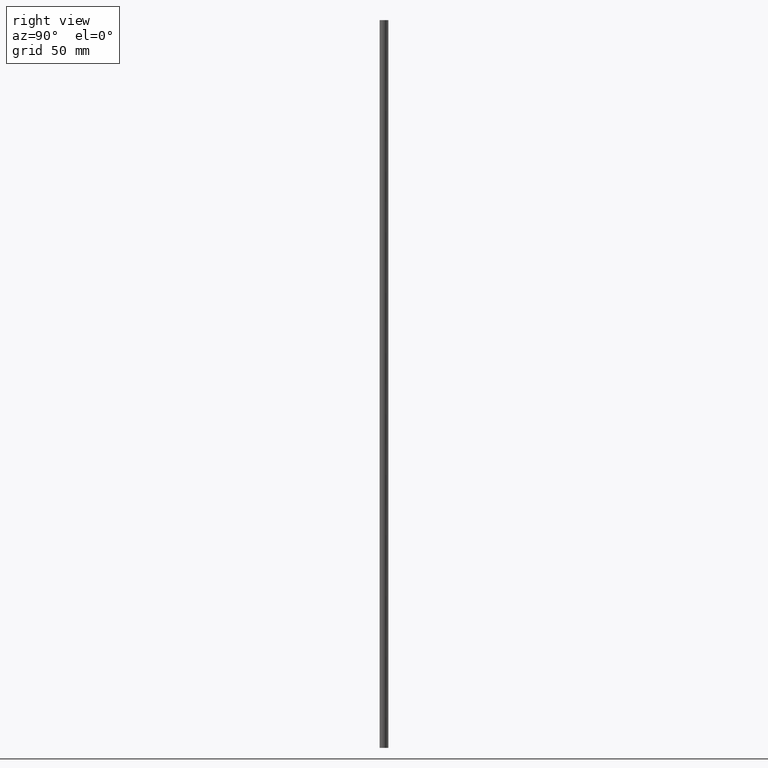
[diagram: clean part render]
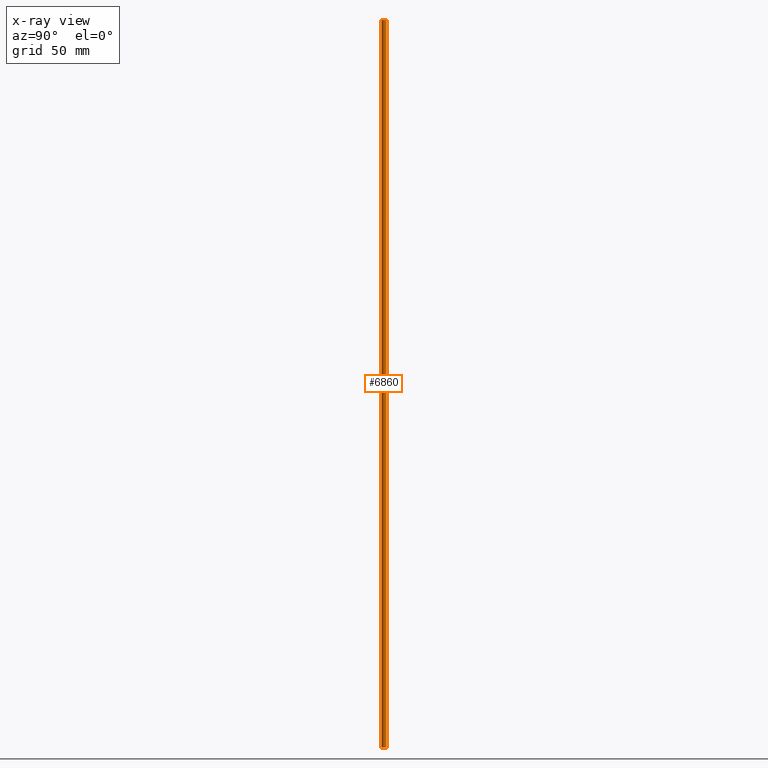
[diagram: x-ray — body ghosted, one internal face saturated and labeled with its STEP entity id]
A machine part, right view, then the same camera in x-ray: the body is ghosted and one INTERNAL B-rep face — a face not visible from any outside direction — is saturated and labeled: STEP entity #6860.
In plain terms, the highlighted face is a freeform B-spline surface patch.
Its self-contained STEP definition (entity closure, byte-faithful):
#6758=CARTESIAN_POINT('',(0.118034234656758,-0.993009526363666,307.500000000000170));
#6759=CARTESIAN_POINT('',(0.089614728637978,-0.996387615448606,307.500000000000110));
#6760=CARTESIAN_POINT('',(0.061048539534857,-0.998134798421867,307.500000000000110));
#6761=CARTESIAN_POINT('',(-0.937086258887010,-1.059183337956724,307.500000000000000));
#6762=CARTESIAN_POINT('',(-0.998134798421867,-0.061048539534857,307.500000000000110));
#6763=CARTESIAN_POINT('',(-1.059183337956724,0.937086258887010,307.500000000000000));
#6764=CARTESIAN_POINT('',(-0.061048539534857,0.998134798421867,307.500000000000110));
#6765=CARTESIAN_POINT('',(0.118034234656758,-0.993009526363666,-7.687500000000002));
#6766=CARTESIAN_POINT('',(0.089614728637978,-0.996387615448606,-7.687500000000001));
#6767=CARTESIAN_POINT('',(0.061048539534857,-0.998134798421867,-7.687500000000000));
#6768=CARTESIAN_POINT('',(-0.937086258887010,-1.059183337956724,-7.687500000000001));
#6769=CARTESIAN_POINT('',(-0.998134798421867,-0.061048539534857,-7.687500000000000));
#6770=CARTESIAN_POINT('',(-1.059183337956724,0.937086258887010,-7.687500000000001));
#6771=CARTESIAN_POINT('',(-0.061048539534857,0.998134798421867,-7.687500000000000));
#6779=(BOUNDED_SURFACE()B_SPLINE_SURFACE(2,1,((#6758,#6765),(#6759,#6766),(#6760,#6767),(#6761,#6768),(#6762,#6769),(#6763,#6770),(#6764,#6771)),.UNSPECIFIED.,.F.,.F.,.U.)B_SPLINE_SURFACE_WITH_KNOTS((3,2,2,3),(2,2),(3.078760800517997,3.141592653589793,4.712388980384690,6.283185307179586),(0.0,315.187500000000110),.UNSPECIFIED.)GEOMETRIC_REPRESENTATION_ITEM()RATIONAL_B_SPLINE_SURFACE(((0.977505800795127,0.977505800795127),(0.988284271247462,0.988284271247462),(1.0,1.0),(0.707106781186548,0.707106781186548),(1.0,1.0),(0.707106781186548,0.707106781186548),(1.0,1.0)))REPRESENTATION_ITEM('')SURFACE());
#6780=CARTESIAN_POINT('',(0.118034236248995,-0.993009526174405,-1.317495E-014));
#6781=VERTEX_POINT('',#6780);
#6782=CARTESIAN_POINT('',(-1.0,0.0,0.0));
#6783=VERTEX_POINT('',#6782);
#6784=CARTESIAN_POINT('',(0.118034236248995,-0.993009526174405,-1.317495E-014));
#6785=CARTESIAN_POINT('',(0.059224121260980,-1.0,0.0));
#6786=CARTESIAN_POINT('',(0.0,-1.0,0.0));
#6787=CARTESIAN_POINT('',(-1.0,-1.0,0.0));
#6788=CARTESIAN_POINT('',(-1.0,0.0,0.0));
#6796=(BOUNDED_CURVE()B_SPLINE_CURVE(2,(#6784,#6785,#6786,#6787,#6788),.UNSPECIFIED.,.F.,.U.)B_SPLINE_CURVE_WITH_KNOTS((3,2,3),(0.229562472973669,0.250000000000000,0.500000000000000),.UNSPECIFIED.)CURVE()GEOMETRIC_REPRESENTATION_ITEM()RATIONAL_B_SPLINE_CURVE((0.956026753125593,0.976055947698684,1.0,0.707106781186548,1.0))REPRESENTATION_ITEM(''));
#6797=EDGE_CURVE('',#6781,#6783,#6796,.T.);
#6798=ORIENTED_EDGE('',*,*,#6797,.F.);
#6799=CARTESIAN_POINT('',(0.118034236248997,-0.993009526174405,300.0));
#6800=VERTEX_POINT('',#6799);
#6801=CARTESIAN_POINT('',(0.118034236248997,-0.993009526174405,300.0));
#6802=CARTESIAN_POINT('',(0.118034236248995,-0.993009526174405,-1.317495E-014));
#6803=QUASI_UNIFORM_CURVE('',1,(#6801,#6802),.UNSPECIFIED.,.F.,.U.);
#6804=EDGE_CURVE('',#6800,#6781,#6803,.T.);
#6805=ORIENTED_EDGE('',*,*,#6804,.F.);
#6806=CARTESIAN_POINT('',(-1.0,0.0,300.0));
#6807=VERTEX_POINT('',#6806);
#6808=CARTESIAN_POINT('',(0.118034236248997,-0.993009526174405,300.0));
#6809=CARTESIAN_POINT('',(0.059224121260981,-1.0,300.000000000000060));
#6810=CARTESIAN_POINT('',(0.0,-1.0,300.0));
#6811=CARTESIAN_POINT('',(-1.0,-1.0,300.000000000000060));
#6812=CARTESIAN_POINT('',(-1.0,0.0,300.0));
#6820=(BOUNDED_CURVE()B_SPLINE_CURVE(2,(#6808,#6809,#6810,#6811,#6812),.UNSPECIFIED.,.F.,.U.)B_SPLINE_CURVE_WITH_KNOTS((3,2,3),(0.229562472973669,0.250000000000000,0.500000000000000),.UNSPECIFIED.)CURVE()GEOMETRIC_REPRESENTATION_ITEM()RATIONAL_B_SPLINE_CURVE((0.956026753125591,0.976055947698684,1.0,0.707106781186548,1.0))REPRESENTATION_ITEM(''));
#6821=EDGE_CURVE('',#6800,#6807,#6820,.T.);
#6822=ORIENTED_EDGE('',*,*,#6821,.T.);
#6823=CARTESIAN_POINT('',(-0.061049043777348,0.998134767580819,300.0));
#6824=VERTEX_POINT('',#6823);
#6825=CARTESIAN_POINT('',(-1.0,0.0,300.0));
#6826=CARTESIAN_POINT('',(-1.0,0.940705114669268,300.0));
#6827=CARTESIAN_POINT('',(-0.061049043777348,0.998134767580819,300.000000000000060));
#6835=(BOUNDED_CURVE()B_SPLINE_CURVE(2,(#6825,#6826,#6827),.UNSPECIFIED.,.F.,.U.)B_SPLINE_CURVE_WITH_KNOTS((3,3),(0.500000000000000,0.739332787905979),.UNSPECIFIED.)CURVE()GEOMETRIC_REPRESENTATION_ITEM()RATIONAL_B_SPLINE_CURVE((1.0,0.719604197530482,0.976071668038276))REPRESENTATION_ITEM(''));
#6836=EDGE_CURVE('',#6807,#6824,#6835,.T.);
#6837=ORIENTED_EDGE('',*,*,#6836,.T.);
#6838=CARTESIAN_POINT('',(-0.061049043777348,0.998134767580819,2.131628E-014));
#6839=VERTEX_POINT('',#6838);
#6840=CARTESIAN_POINT('',(-0.061049043777348,0.998134767580819,300.0));
#6841=CARTESIAN_POINT('',(-0.061049043777348,0.998134767580819,2.131628E-014));
#6842=QUASI_UNIFORM_CURVE('',1,(#6840,#6841),.UNSPECIFIED.,.F.,.U.);
#6843=EDGE_CURVE('',#6824,#6839,#6842,.T.);
#6844=ORIENTED_EDGE('',*,*,#6843,.T.);
#6845=CARTESIAN_POINT('',(-1.0,0.0,0.0));
#6846=CARTESIAN_POINT('',(-1.0,0.940705114669268,0.0));
#6847=CARTESIAN_POINT('',(-0.061049043777348,0.998134767580819,2.131628E-014));
#6855=(BOUNDED_CURVE()B_SPLINE_CURVE(2,(#6845,#6846,#6847),.UNSPECIFIED.,.F.,.U.)B_SPLINE_CURVE_WITH_KNOTS((3,3),(0.500000000000000,0.739332787905979),.UNSPECIFIED.)CURVE()GEOMETRIC_REPRESENTATION_ITEM()RATIONAL_B_SPLINE_CURVE((1.0,0.719604197530482,0.976071668038276))REPRESENTATION_ITEM(''));
#6856=EDGE_CURVE('',#6783,#6839,#6855,.T.);
#6857=ORIENTED_EDGE('',*,*,#6856,.F.);
#6858=EDGE_LOOP('',(#6798,#6805,#6822,#6837,#6844,#6857));
#6859=FACE_OUTER_BOUND('',#6858,.T.);
#6860=ADVANCED_FACE('',(#6859),#6779,.T.);